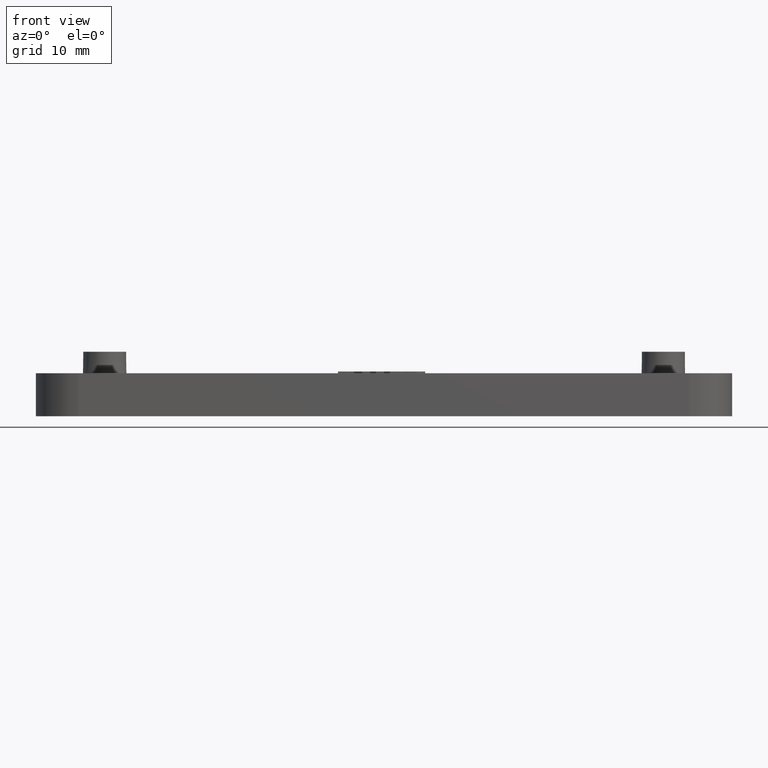
[diagram: clean part render]
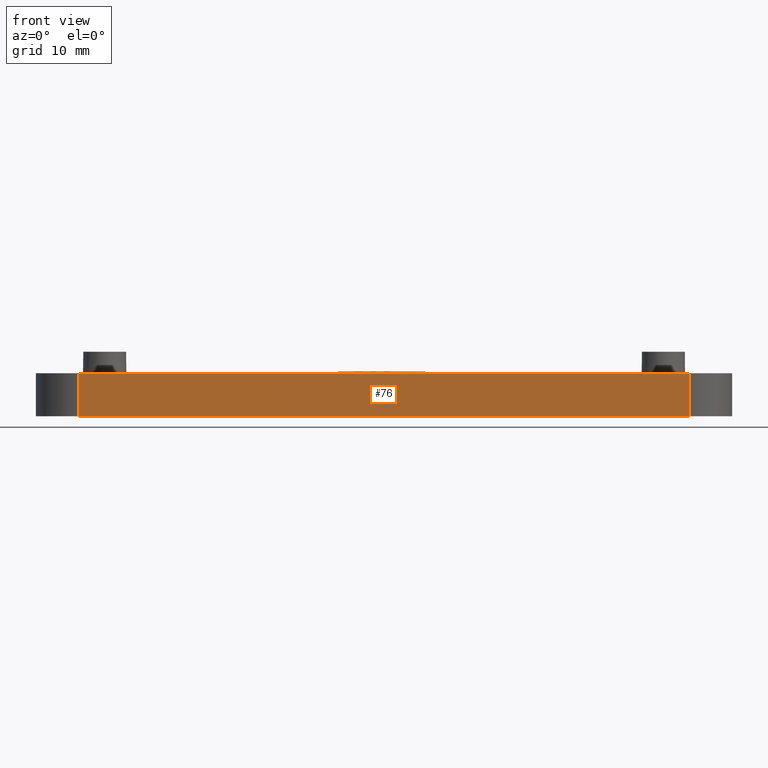
[diagram: same view with one face highlighted and labeled with its STEP entity id]
A machine part, front view. The second image highlights one B-rep face of the part: STEP entity #76.
In plain terms, the highlighted planar face has unit normal (0, 1, -0).
Its self-contained STEP definition (entity closure, byte-faithful):
#76 = ADVANCED_FACE( '', ( #519 ), #520, .F. );
#519 = FACE_OUTER_BOUND( '', #1455, .T. );
#520 = PLANE( '', #1456 );
#1455 = EDGE_LOOP( '', ( #2423, #2424, #2425, #2426 ) );
#1456 = AXIS2_PLACEMENT_3D( '', #2427, #2428, #2429 );
#2423 = ORIENTED_EDGE( '', *, *, #5914, .F. );
#2424 = ORIENTED_EDGE( '', *, *, #5892, .T. );
#2425 = ORIENTED_EDGE( '', *, *, #5915, .T. );
#2426 = ORIENTED_EDGE( '', *, *, #5916, .F. );
#2427 = CARTESIAN_POINT( '', ( 53.0000000000000, -12.5000000000000, -1.31124088366755E-014 ) );
#2428 = DIRECTION( '', ( 0.000000000000000, 1.00000000000000, -6.12303176911189E-017 ) );
#2429 = DIRECTION( '', ( 1.00000000000000, 0.000000000000000, 0.000000000000000 ) );
#5892 = EDGE_CURVE( '', #7005, #7003, #7006, .T. );
#5914 = EDGE_CURVE( '', #7005, #7048, #7049, .T. );
#5915 = EDGE_CURVE( '', #7003, #7050, #7051, .T. );
#5916 = EDGE_CURVE( '', #7048, #7050, #7052, .T. );
#7003 = VERTEX_POINT( '', #8844 );
#7005 = VERTEX_POINT( '', #8846 );
#7006 = LINE( '', #8847, #8848 );
#7048 = VERTEX_POINT( '', #8906 );
#7049 = LINE( '', #8907, #8908 );
#7050 = VERTEX_POINT( '', #8909 );
#7051 = LINE( '', #8910, #8911 );
#7052 = LINE( '', #8912, #8913 );
#8844 = CARTESIAN_POINT( '', ( -35.5000000000000, -12.5000000000000, 4.99999999999999 ) );
#8846 = CARTESIAN_POINT( '', ( 35.5000000000000, -12.5000000000000, 4.99999999999999 ) );
#8847 = CARTESIAN_POINT( '', ( 53.0000000000000, -12.5000000000000, 4.99999999999999 ) );
#8848 = VECTOR( '', #11730, 1000.00000000000 );
#8906 = CARTESIAN_POINT( '', ( 35.5000000000000, -12.4999999999999, 1.46431667789534E-014 ) );
#8907 = CARTESIAN_POINT( '', ( 35.5000000000000, -12.4999999999999, 85.9625955756165 ) );
#8908 = VECTOR( '', #11762, 1000.00000000000 );
#8909 = CARTESIAN_POINT( '', ( -35.5000000000000, -12.5000000000000, -1.31124088366755E-014 ) );
#8910 = CARTESIAN_POINT( '', ( -35.5000000000000, -12.5000000000000, 99.3873957580092 ) );
#8911 = VECTOR( '', #11763, 1000.00000000000 );
#8912 = CARTESIAN_POINT( '', ( 53.0000000000000, -12.5000000000000, -1.31124088366755E-014 ) );
#8913 = VECTOR( '', #11764, 1000.00000000000 );
#11730 = DIRECTION( '', ( -1.00000000000000, 0.000000000000000, 0.000000000000000 ) );
#11762 = DIRECTION( '', ( 1.60751816480227E-016, -1.81794180051289E-016, -1.00000000000000 ) );
#11763 = DIRECTION( '', ( 1.60751816480226E-016, -1.81794180051289E-016, -1.00000000000000 ) );
#11764 = DIRECTION( '', ( -1.00000000000000, 0.000000000000000, 0.000000000000000 ) );